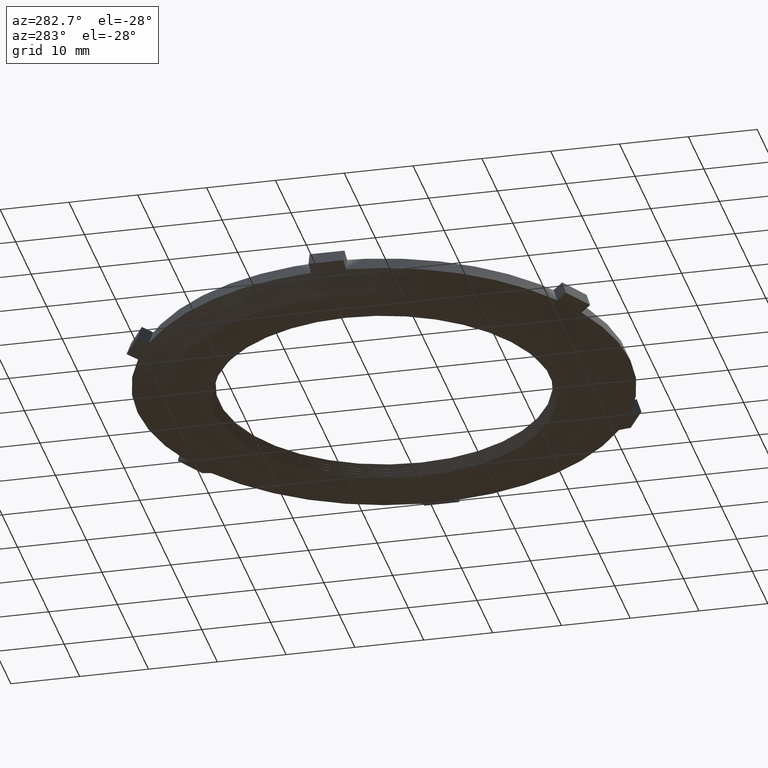
[diagram: clean part render]
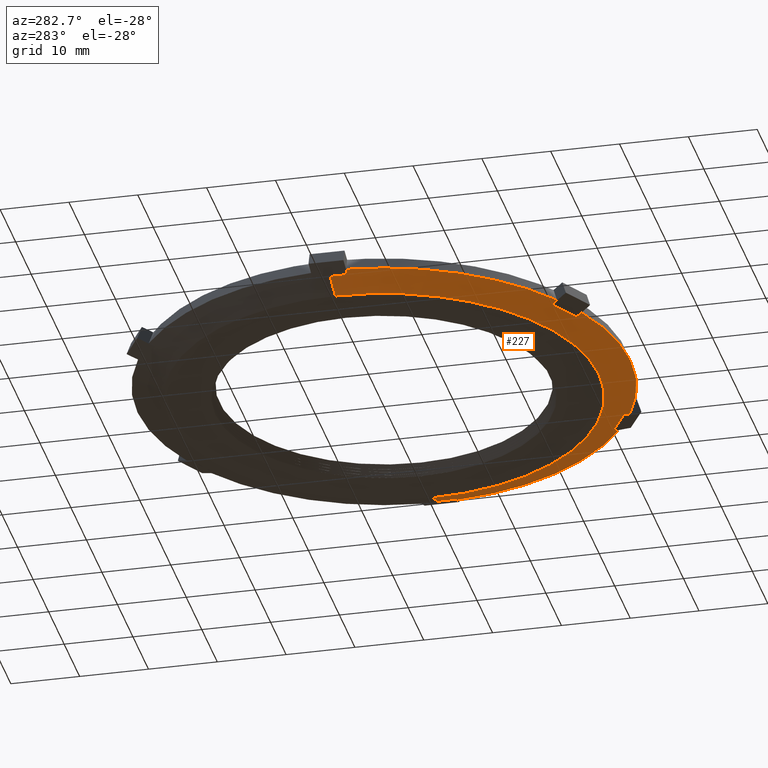
[diagram: same view with one face highlighted and labeled with its STEP entity id]
A machine part, auxiliary view. The second image highlights one B-rep face of the part: STEP entity #227.
In plain terms, the highlighted conical surface has half-angle 70 deg.
Its self-contained STEP definition (entity closure, byte-faithful):
#13 = VERTEX_POINT ( 'NONE', #783 ) ;
#19 = VERTEX_POINT ( 'NONE', #777 ) ;
#20 = EDGE_CURVE ( 'NONE', #19, #13, #776, .T. ) ;
#21 = VERTEX_POINT ( 'NONE', #772 ) ;
#28 = ORIENTED_EDGE ( 'NONE', *, *, #201, .F. ) ;
#73 = EDGE_CURVE ( 'NONE', #74, #146, #932, .T. ) ;
#74 = VERTEX_POINT ( 'NONE', #933 ) ;
#75 = ORIENTED_EDGE ( 'NONE', *, *, #76, .F. ) ;
#76 = EDGE_CURVE ( 'NONE', #272, #74, #927, .T. ) ;
#77 = ORIENTED_EDGE ( 'NONE', *, *, #78, .F. ) ;
#78 = EDGE_CURVE ( 'NONE', #79, #256, #922, .T. ) ;
#79 = VERTEX_POINT ( 'NONE', #921 ) ;
#80 = ORIENTED_EDGE ( 'NONE', *, *, #81, .F. ) ;
#81 = EDGE_CURVE ( 'NONE', #13, #79, #875, .T. ) ;
#90 = ORIENTED_EDGE ( 'NONE', *, *, #114, .T. ) ;
#92 = EDGE_LOOP ( 'NONE', ( #115, #215, #90, #113, #144, #177, #28, #202, #204, #245, #242, #244, #75, #147, #150, #254, #77, #80 ) ) ;
#113 = ORIENTED_EDGE ( 'NONE', *, *, #210, .F. ) ;
#114 = EDGE_CURVE ( 'NONE', #21, #171, #950, .T. ) ;
#115 = ORIENTED_EDGE ( 'NONE', *, *, #20, .F. ) ;
#143 = VERTEX_POINT ( 'NONE', #1053 ) ;
#144 = ORIENTED_EDGE ( 'NONE', *, *, #228, .T. ) ;
#146 = VERTEX_POINT ( 'NONE', #1058 ) ;
#147 = ORIENTED_EDGE ( 'NONE', *, *, #148, .F. ) ;
#148 = EDGE_CURVE ( 'NONE', #149, #272, #1049, .T. ) ;
#149 = VERTEX_POINT ( 'NONE', #1050 ) ;
#150 = ORIENTED_EDGE ( 'NONE', *, *, #252, .T. ) ;
#171 = VERTEX_POINT ( 'NONE', #1131 ) ;
#176 = VERTEX_POINT ( 'NONE', #1129 ) ;
#177 = ORIENTED_EDGE ( 'NONE', *, *, #206, .T. ) ;
#201 = EDGE_CURVE ( 'NONE', #203, #207, #791, .T. ) ;
#202 = ORIENTED_EDGE ( 'NONE', *, *, #220, .F. ) ;
#203 = VERTEX_POINT ( 'NONE', #1196 ) ;
#204 = ORIENTED_EDGE ( 'NONE', *, *, #205, .F. ) ;
#205 = EDGE_CURVE ( 'NONE', #273, #221, #1204, .T. ) ;
#206 = EDGE_CURVE ( 'NONE', #176, #207, #1186, .T. ) ;
#207 = VERTEX_POINT ( 'NONE', #1187 ) ;
#210 = EDGE_CURVE ( 'NONE', #143, #171, #1194, .T. ) ;
#215 = ORIENTED_EDGE ( 'NONE', *, *, #216, .F. ) ;
#216 = EDGE_CURVE ( 'NONE', #21, #19, #1601, .T. ) ;
#220 = EDGE_CURVE ( 'NONE', #221, #203, #1618, .T. ) ;
#221 = VERTEX_POINT ( 'NONE', #1617 ) ;
#227 = ADVANCED_FACE ( 'NONE', ( #1635 ), #1634, .T. ) ;
#228 = EDGE_CURVE ( 'NONE', #143, #176, #1241, .T. ) ;
#242 = ORIENTED_EDGE ( 'NONE', *, *, #243, .T. ) ;
#243 = EDGE_CURVE ( 'NONE', #274, #146, #1244, .T. ) ;
#244 = ORIENTED_EDGE ( 'NONE', *, *, #73, .F. ) ;
#245 = ORIENTED_EDGE ( 'NONE', *, *, #246, .T. ) ;
#246 = EDGE_CURVE ( 'NONE', #273, #274, #1264, .T. ) ;
#252 = EDGE_CURVE ( 'NONE', #149, #253, #1267, .T. ) ;
#253 = VERTEX_POINT ( 'NONE', #1266 ) ;
#254 = ORIENTED_EDGE ( 'NONE', *, *, #255, .T. ) ;
#255 = EDGE_CURVE ( 'NONE', #253, #256, #1272, .T. ) ;
#256 = VERTEX_POINT ( 'NONE', #1304 ) ;
#272 = VERTEX_POINT ( 'NONE', #1319 ) ;
#273 = VERTEX_POINT ( 'NONE', #1348 ) ;
#274 = VERTEX_POINT ( 'NONE', #1331 ) ;
#772 = CARTESIAN_POINT ( 'NONE',  ( 1.230000000000000000, 0.0000000000000000000, -0.07999999999999996000 ) ) ;
#773 = DIRECTION ( 'NONE',  ( -0.9396926207859105400, 1.150753554054427600E-016, 0.3420201433256630000 ) ) ;
#774 = VECTOR ( 'NONE', #773, 39.37007874015748900 ) ;
#775 = CARTESIAN_POINT ( 'NONE',  ( -1.409999999999999900, 1.726694958889552000E-016, -0.01448535783208477000 ) ) ;
#776 = LINE ( 'NONE', #775, #774 ) ;
#777 = CARTESIAN_POINT ( 'NONE',  ( -1.230000000000000000, 1.616480387045538300E-016, -0.07999999999999996000 ) ) ;
#783 = CARTESIAN_POINT ( 'NONE',  ( -1.369999999999999900, -9.698060377508134700E-015, -0.02904416720273242700 ) ) ;
#791 = B_SPLINE_CURVE_WITH_KNOTS ( 'NONE', 3,
 ( #1178, #1193, #1185, #1195 ),
 .UNSPECIFIED., .F., .F.,
 ( 4, 4 ),
 ( 8.781270543147401000E-005, 0.001084271985295557500 ),
 .UNSPECIFIED. ) ;
#792 = CARTESIAN_POINT ( 'NONE',  ( 1.369573508532430500, -0.09999999999999999200, -0.02787239152599538600 ) ) ;
#870 = CARTESIAN_POINT ( 'NONE',  ( -1.369573508532429400, -0.1000000000000095500, -0.02787239152599545500 ) ) ;
#871 = CARTESIAN_POINT ( 'NONE',  ( -1.369857546946368500, -0.06666666666667625500, -0.02865278065454921600 ) ) ;
#872 = CARTESIAN_POINT ( 'NONE',  ( -1.369999999999999700, -0.03333333333334297100, -0.02904416720273264900 ) ) ;
#873 = CARTESIAN_POINT ( 'NONE',  ( -1.369999999999999900, -9.698060377508134700E-015, -0.02904416720273242700 ) ) ;
#875 = B_SPLINE_CURVE_WITH_KNOTS ( 'NONE', 3,
 ( #873, #872, #871, #870 ),
 .UNSPECIFIED., .F., .F.,
 ( 4, 4 ),
 ( 0.002540200000000008100, 0.005080200000000003500 ),
 .UNSPECIFIED. ) ;
#876 = CARTESIAN_POINT ( 'NONE',  ( -1.406449430303129600, -0.1000000000000098000, -0.01448535783208478000 ) ) ;
#877 = CARTESIAN_POINT ( 'NONE',  ( -1.404246164663085500, -0.1000000000000097900, -0.01528526159296017900 ) ) ;
#878 = CARTESIAN_POINT ( 'NONE',  ( -1.402042895990377200, -0.1000000000000097800, -0.01608515700067450500 ) ) ;
#879 = CARTESIAN_POINT ( 'NONE',  ( -1.399839624242132000, -0.1000000000000097600, -0.01688504393683895600 ) ) ;
#918 = CARTESIAN_POINT ( 'NONE',  ( -1.389750984907857500, -0.1000000000000096900, -0.02054767466479573100 ) ) ;
#919 = CARTESIAN_POINT ( 'NONE',  ( -1.379662281117535000, -0.1000000000000096200, -0.02421012785546623700 ) ) ;
#920 = CARTESIAN_POINT ( 'NONE',  ( -1.369573508532429400, -0.1000000000000095500, -0.02787239152599545500 ) ) ;
#921 = CARTESIAN_POINT ( 'NONE',  ( -1.369573508532429400, -0.1000000000000095500, -0.02787239152599545500 ) ) ;
#922 = B_SPLINE_CURVE_WITH_KNOTS ( 'NONE', 3,
 ( #920, #919, #918, #879, #878, #877, #876 ),
 .UNSPECIFIED., .F., .F.,
 ( 4, 3, 4 ),
 ( 0.002444858059863898800, 0.003262706334336376900, 0.003441317337864635300 ),
 .UNSPECIFIED. ) ;
#923 = CARTESIAN_POINT ( 'NONE',  ( -0.5981842138877597700, -1.236085450739273800, -0.02787239152599532000 ) ) ;
#924 = CARTESIAN_POINT ( 'NONE',  ( -0.6271937236552072000, -1.219664781516580400, -0.02865278003854020800 ) ) ;
#925 = CARTESIAN_POINT ( 'NONE',  ( -0.6561324637071183100, -1.203121483034217000, -0.02904416720273269100 ) ) ;
#926 = CARTESIAN_POINT ( 'NONE',  ( -0.6849999999999889500, -1.186454803184687300, -0.02904416720273245200 ) ) ;
#927 = B_SPLINE_CURVE_WITH_KNOTS ( 'NONE', 3,
 ( #926, #925, #924, #923 ),
 .UNSPECIFIED., .F., .F.,
 ( 4, 4 ),
 ( 0.002546515388295958000, 0.005086517392254488000 ),
 .UNSPECIFIED. ) ;
#928 = CARTESIAN_POINT ( 'NONE',  ( -0.6166221747731096500, -1.268020935780667800, -0.01448535783208481300 ) ) ;
#929 = CARTESIAN_POINT ( 'NONE',  ( -0.6104762362706948100, -1.257375858034291700, -0.01894796936002791600 ) ) ;
#930 = CARTESIAN_POINT ( 'NONE',  ( -0.6043302506046351900, -1.246730698598085900, -0.02341032108163188700 ) ) ;
#931 = CARTESIAN_POINT ( 'NONE',  ( -0.5981842138877597700, -1.236085450739273800, -0.02787239152599532000 ) ) ;
#932 = B_SPLINE_CURVE_WITH_KNOTS ( 'NONE', 3,
 ( #931, #930, #929, #928 ),
 .UNSPECIFIED., .F., .F.,
 ( 4, 4 ),
 ( 8.781270543147691000E-005, 0.001084271985295558000 ),
 .UNSPECIFIED. ) ;
#933 = CARTESIAN_POINT ( 'NONE',  ( -0.5981842138877597700, -1.236085450739273800, -0.02787239152599532000 ) ) ;
#943 = DIRECTION ( 'NONE',  ( 0.9396926207859105400, 0.0000000000000000000, 0.3420201433256630000 ) ) ;
#944 = VECTOR ( 'NONE', #943, 39.37007874015748900 ) ;
#945 = CARTESIAN_POINT ( 'NONE',  ( 1.409999999999999900, 0.0000000000000000000, -0.01448535783208477000 ) ) ;
#950 = LINE ( 'NONE', #945, #944 ) ;
#1036 = CARTESIAN_POINT ( 'NONE',  ( 1.369999999999999900, -0.03333333333333333300, -0.02904416720273260400 ) ) ;
#1041 = CARTESIAN_POINT ( 'NONE',  ( 1.369857546946369000, -0.06666666666666666600, -0.02865278065454921600 ) ) ;
#1049 = B_SPLINE_CURVE_WITH_KNOTS ( 'NONE', 3,
 ( #1095, #1094, #1093, #1092 ),
 .UNSPECIFIED., .F., .F.,
 ( 4, 4 ),
 ( 6.517402474194150000E-006, 0.002546515388295958000 ),
 .UNSPECIFIED. ) ;
#1050 = CARTESIAN_POINT ( 'NONE',  ( -0.7713892946446484500, -1.136085450739275500, -0.02787239152599538600 ) ) ;
#1053 = CARTESIAN_POINT ( 'NONE',  ( 1.369573508532430500, -0.09999999999999999200, -0.02787239152599538600 ) ) ;
#1058 = CARTESIAN_POINT ( 'NONE',  ( -0.6166221747731096500, -1.268020935780667800, -0.01448535783208481300 ) ) ;
#1092 = CARTESIAN_POINT ( 'NONE',  ( -0.6849999999999889500, -1.186454803184687300, -0.02904416720273245200 ) ) ;
#1093 = CARTESIAN_POINT ( 'NONE',  ( -0.7138674906260812400, -1.169788149700884200, -0.02904416720273269100 ) ) ;
#1094 = CARTESIAN_POINT ( 'NONE',  ( -0.7426637777172707700, -1.152998115238299300, -0.02865278127056318500 ) ) ;
#1095 = CARTESIAN_POINT ( 'NONE',  ( -0.7713892946446484500, -1.136085450739275500, -0.02787239152599538600 ) ) ;
#1129 = CARTESIAN_POINT ( 'NONE',  ( 1.406449430303130500, -0.09999999999999999200, -0.01448535783208477900 ) ) ;
#1131 = CARTESIAN_POINT ( 'NONE',  ( 1.369999999999999900, 0.0000000000000000000, -0.02904416720273242700 ) ) ;
#1178 = CARTESIAN_POINT ( 'NONE',  ( 0.7713892946446722100, -1.136085450739259500, -0.02787239152599538600 ) ) ;
#1185 = CARTESIAN_POINT ( 'NONE',  ( 0.7836813170276076800, -1.157375858034277000, -0.01894796936002784600 ) ) ;
#1186 = CIRCLE ( 'NONE', #1201, 1.409999999999999900 ) ;
#1187 = CARTESIAN_POINT ( 'NONE',  ( 0.7898272555300226400, -1.168020935780653000, -0.01448535783208478400 ) ) ;
#1188 = CARTESIAN_POINT ( 'NONE',  ( 0.6850000000000138200, -1.186454803184673100, -0.02904416720273245200 ) ) ;
#1193 = CARTESIAN_POINT ( 'NONE',  ( 0.7775353313615478400, -1.146730698598071400, -0.02341032108163186600 ) ) ;
#1194 = B_SPLINE_CURVE_WITH_KNOTS ( 'NONE', 3,
 ( #792, #1041, #1036, #1211 ),
 .UNSPECIFIED., .F., .F.,
 ( 4, 4 ),
 ( 2.000000000001132800E-007, 0.002540199999999999800 ),
 .UNSPECIFIED. ) ;
#1195 = CARTESIAN_POINT ( 'NONE',  ( 0.7898272555300226400, -1.168020935780653000, -0.01448535783208478400 ) ) ;
#1196 = CARTESIAN_POINT ( 'NONE',  ( 0.7713892946446722100, -1.136085450739259500, -0.02787239152599538600 ) ) ;
#1198 = DIRECTION ( 'NONE',  ( -1.000000000000000000, 0.0000000000000000000, 0.0000000000000000000 ) ) ;
#1199 = DIRECTION ( 'NONE',  ( -0.0000000000000000000, -0.0000000000000000000, -1.000000000000000000 ) ) ;
#1200 = CARTESIAN_POINT ( 'NONE',  ( 0.0000000000000000000, 0.0000000000000000000, -0.01448535783208477000 ) ) ;
#1201 = AXIS2_PLACEMENT_3D ( 'NONE', #1200, #1199, #1198 ) ;
#1202 = CARTESIAN_POINT ( 'NONE',  ( 0.6271937236552328500, -1.219664781516567300, -0.02865278003854019500 ) ) ;
#1203 = CARTESIAN_POINT ( 'NONE',  ( 0.5981842138877857500, -1.236085450739261300, -0.02787239152599545500 ) ) ;
#1204 = B_SPLINE_CURVE_WITH_KNOTS ( 'NONE', 3,
 ( #1203, #1202, #1205, #1188 ),
 .UNSPECIFIED., .F., .F.,
 ( 4, 4 ),
 ( 1.945131258849404400E-005, 0.002559453316547020100 ),
 .UNSPECIFIED. ) ;
#1205 = CARTESIAN_POINT ( 'NONE',  ( 0.6561324637071434000, -1.203121483034203400, -0.02904416720273265600 ) ) ;
#1211 = CARTESIAN_POINT ( 'NONE',  ( 1.369999999999999900, 0.0000000000000000000, -0.02904416720273242700 ) ) ;
#1219 = CARTESIAN_POINT ( 'NONE',  ( 1.370191600141304600, -0.09999999999999999200, -0.02764802160065276500 ) ) ;
#1226 = CARTESIAN_POINT ( 'NONE',  ( 1.394363580570838800, -0.09999999999999999200, -0.01887317039473259200 ) ) ;
#1229 = CARTESIAN_POINT ( 'NONE',  ( 1.369779539097413700, -0.09999999999999999200, -0.02779760162992110700 ) ) ;
#1230 = CARTESIAN_POINT ( 'NONE',  ( 1.369985569633692000, -0.09999999999999999200, -0.02772281165477139000 ) ) ;
#1232 = CARTESIAN_POINT ( 'NONE',  ( 1.382277639644670500, -0.09999999999999999200, -0.02326073178123785500 ) ) ;
#1239 = CARTESIAN_POINT ( 'NONE',  ( 1.406449430303130500, -0.09999999999999999200, -0.01448535783208477900 ) ) ;
#1240 = CARTESIAN_POINT ( 'NONE',  ( 1.369573508532430500, -0.09999999999999999200, -0.02787239152599538600 ) ) ;
#1241 = B_SPLINE_CURVE_WITH_KNOTS ( 'NONE', 3,
 ( #1240, #1229, #1230, #1219, #1232, #1226, #1239 ),
 .UNSPECIFIED., .F., .F.,
 ( 4, 3, 4 ),
 ( 0.003246004428661492800, 0.003262706335694099500, 0.004242463706418421300 ),
 .UNSPECIFIED. ) ;
#1242 = CARTESIAN_POINT ( 'NONE',  ( 0.0000000000000000000, 0.0000000000000000000, -0.01448535783208477000 ) ) ;
#1243 = AXIS2_PLACEMENT_3D ( 'NONE', #1242, #1249, #1254 ) ;
#1244 = CIRCLE ( 'NONE', #1243, 1.409999999999999900 ) ;
#1249 = DIRECTION ( 'NONE',  ( -0.0000000000000000000, -0.0000000000000000000, -1.000000000000000000 ) ) ;
#1252 = CARTESIAN_POINT ( 'NONE',  ( 0.6043302506046611700, -1.246730698598073500, -0.02341032108163186600 ) ) ;
#1254 = DIRECTION ( 'NONE',  ( -1.000000000000000000, 0.0000000000000000000, 0.0000000000000000000 ) ) ;
#1261 = CARTESIAN_POINT ( 'NONE',  ( 0.6166221747731359700, -1.268020935780654900, -0.01448535783208476000 ) ) ;
#1263 = CARTESIAN_POINT ( 'NONE',  ( 0.5981842138877857500, -1.236085450739261300, -0.02787239152599545500 ) ) ;
#1264 = B_SPLINE_CURVE_WITH_KNOTS ( 'NONE', 3,
 ( #1263, #1252, #1265, #1261 ),
 .UNSPECIFIED., .F., .F.,
 ( 4, 4 ),
 ( 8.781270543147054100E-005, 0.001084271985295554700 ),
 .UNSPECIFIED. ) ;
#1265 = CARTESIAN_POINT ( 'NONE',  ( 0.6104762362707211200, -1.257375858034278900, -0.01894796936002785300 ) ) ;
#1266 = CARTESIAN_POINT ( 'NONE',  ( -0.7898272555299983300, -1.168020935780669700, -0.01448535783208473400 ) ) ;
#1267 = B_SPLINE_CURVE_WITH_KNOTS ( 'NONE', 3,
 ( #1270, #1269, #1275, #1274 ),
 .UNSPECIFIED., .F., .F.,
 ( 4, 4 ),
 ( 8.781270543147364400E-005, 0.001084271985295562700 ),
 .UNSPECIFIED. ) ;
#1269 = CARTESIAN_POINT ( 'NONE',  ( -0.7775353313615238600, -1.146730698598087800, -0.02341032108163185200 ) ) ;
#1270 = CARTESIAN_POINT ( 'NONE',  ( -0.7713892946446484500, -1.136085450739275500, -0.02787239152599538600 ) ) ;
#1272 = CIRCLE ( 'NONE', #1281, 1.409999999999999900 ) ;
#1273 = CARTESIAN_POINT ( 'NONE',  ( 0.0000000000000000000, 0.0000000000000000000, -0.01448535783208477000 ) ) ;
#1274 = CARTESIAN_POINT ( 'NONE',  ( -0.7898272555299983300, -1.168020935780669700, -0.01448535783208473400 ) ) ;
#1275 = CARTESIAN_POINT ( 'NONE',  ( -0.7836813170275837000, -1.157375858034293400, -0.01894796936002776300 ) ) ;
#1279 = DIRECTION ( 'NONE',  ( -1.000000000000000000, 0.0000000000000000000, 0.0000000000000000000 ) ) ;
#1280 = DIRECTION ( 'NONE',  ( -0.0000000000000000000, -0.0000000000000000000, -1.000000000000000000 ) ) ;
#1281 = AXIS2_PLACEMENT_3D ( 'NONE', #1273, #1280, #1279 ) ;
#1304 = CARTESIAN_POINT ( 'NONE',  ( -1.406449430303129600, -0.1000000000000098000, -0.01448535783208478000 ) ) ;
#1319 = CARTESIAN_POINT ( 'NONE',  ( -0.6849999999999889500, -1.186454803184687300, -0.02904416720273245200 ) ) ;
#1331 = CARTESIAN_POINT ( 'NONE',  ( 0.6166221747731359700, -1.268020935780654900, -0.01448535783208476000 ) ) ;
#1348 = CARTESIAN_POINT ( 'NONE',  ( 0.5981842138877857500, -1.236085450739261300, -0.02787239152599545500 ) ) ;
#1601 = CIRCLE ( 'NONE', #1616, 1.230000000000000000 ) ;
#1602 = DIRECTION ( 'NONE',  ( 1.000000000000000000, 0.0000000000000000000, 0.0000000000000000000 ) ) ;
#1603 = DIRECTION ( 'NONE',  ( 0.0000000000000000000, 0.0000000000000000000, 1.000000000000000000 ) ) ;
#1604 = AXIS2_PLACEMENT_3D ( 'NONE', #1633, #1603, #1602 ) ;
#1615 = CARTESIAN_POINT ( 'NONE',  ( 0.0000000000000000000, 0.0000000000000000000, -0.07999999999999996000 ) ) ;
#1616 = AXIS2_PLACEMENT_3D ( 'NONE', #1615, #1636, #1626 ) ;
#1617 = CARTESIAN_POINT ( 'NONE',  ( 0.6850000000000138200, -1.186454803184673100, -0.02904416720273245200 ) ) ;
#1618 = B_SPLINE_CURVE_WITH_KNOTS ( 'NONE', 3,
 ( #1621, #1620, #1619, #1625 ),
 .UNSPECIFIED., .F., .F.,
 ( 4, 4 ),
 ( 0.002559453316547020100, 0.005099451302368783300 ),
 .UNSPECIFIED. ) ;
#1619 = CARTESIAN_POINT ( 'NONE',  ( 0.7426637777172948600, -1.152998115238283800, -0.02865278127056319900 ) ) ;
#1620 = CARTESIAN_POINT ( 'NONE',  ( 0.7138674906261055500, -1.169788149700869300, -0.02904416720273265600 ) ) ;
#1621 = CARTESIAN_POINT ( 'NONE',  ( 0.6850000000000138200, -1.186454803184673100, -0.02904416720273245200 ) ) ;
#1625 = CARTESIAN_POINT ( 'NONE',  ( 0.7713892946446722100, -1.136085450739259500, -0.02787239152599538600 ) ) ;
#1626 = DIRECTION ( 'NONE',  ( -1.000000000000000000, 0.0000000000000000000, 0.0000000000000000000 ) ) ;
#1633 = CARTESIAN_POINT ( 'NONE',  ( 0.0000000000000000000, 0.0000000000000000000, -0.01448535783208477000 ) ) ;
#1634 = CONICAL_SURFACE ( 'NONE', #1604, 1.409999999999999900, 1.221730476396036800 ) ;
#1635 = FACE_OUTER_BOUND ( 'NONE', #92, .T. ) ;
#1636 = DIRECTION ( 'NONE',  ( -0.0000000000000000000, -0.0000000000000000000, -1.000000000000000000 ) ) ;